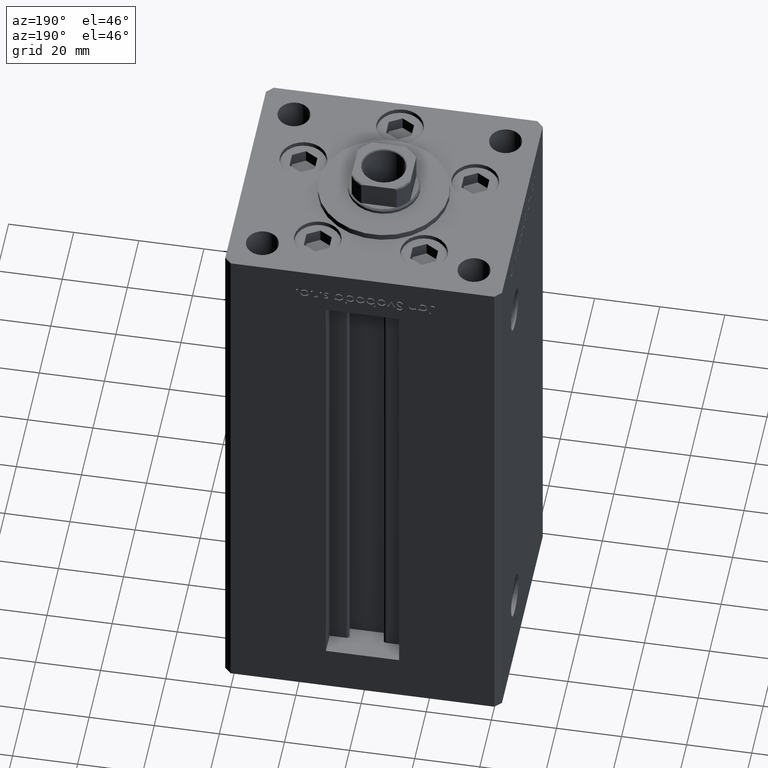
[diagram: clean part render]
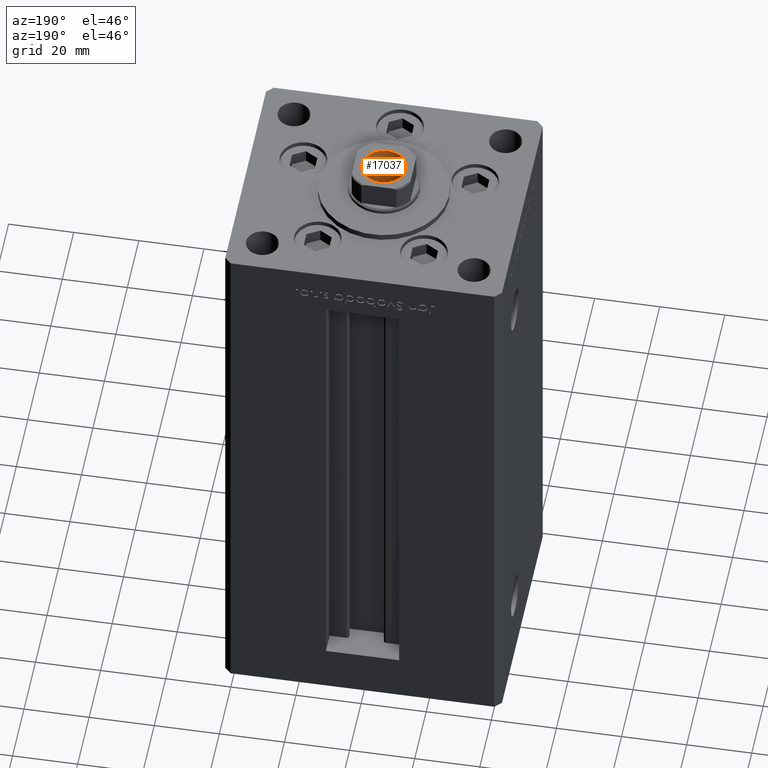
[diagram: same view with one face highlighted and labeled with its STEP entity id]
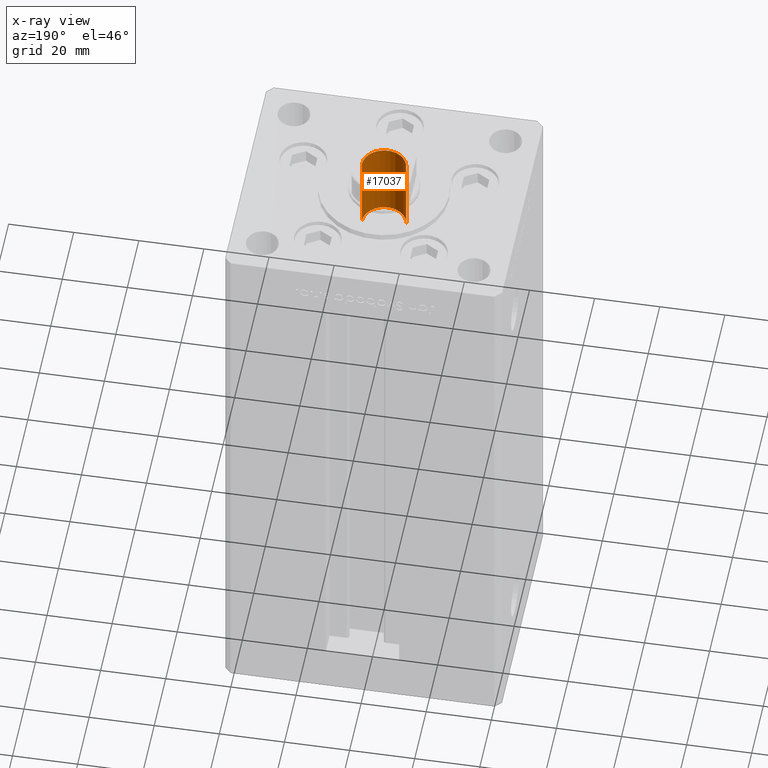
[diagram: x-ray of the same camera — body ghosted, the highlighted face saturated]
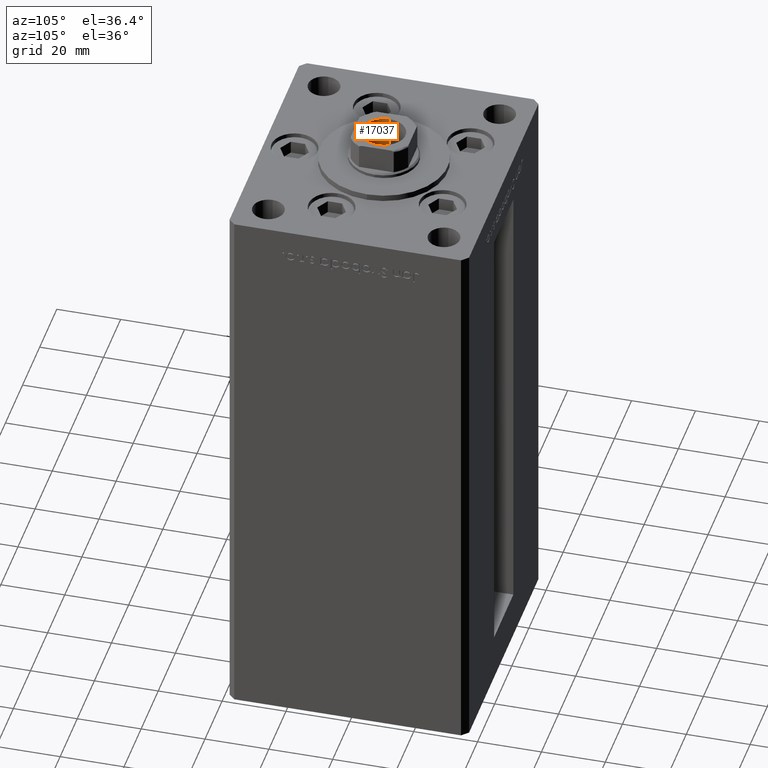
[diagram: same view with one face highlighted and labeled with its STEP entity id]
A machine part, auxiliary view. The second image highlights one B-rep face of the part: STEP entity #17037.
The next image is the same camera in x-ray: the body ghosted, the highlighted face saturated — about 0% of this face is hidden behind the body in this view.
A second angle (auxiliary view) of the same face is appended — the face is thin or edge-on in the first view.
In plain terms, the highlighted cylindrical surface (edge-blend (fillet) strip) has radius 6.75 mm, axis along (0, 0, 1).
Its self-contained STEP definition (entity closure, byte-faithful):
#785 = VERTEX_POINT ( 'NONE', #2245 ) ;
#895 = EDGE_CURVE ( 'NONE', #41517, #14320, #7751, .T. ) ;
#1527 = CARTESIAN_POINT ( 'NONE',  ( 0.000000000000000000, 0.000000000000000000, 155.7500000000000000 ) ) ;
#1783 = DIRECTION ( 'NONE',  ( 1.000000000000000000, 0.000000000000000000, 0.000000000000000000 ) ) ;
#2245 = CARTESIAN_POINT ( 'NONE',  ( 6.749999999999995559, 0.000000000000000000, 155.4499999999999886 ) ) ;
#2663 = VECTOR ( 'NONE', #46357, 1000.000000000000000 ) ;
#4215 = ORIENTED_EDGE ( 'NONE', *, *, #17038, .F. ) ;
#6004 = AXIS2_PLACEMENT_3D ( 'NONE', #1527, #13644, #1783 ) ;
#7751 = LINE ( 'NONE', #52077, #20837 ) ;
#8006 = DIRECTION ( 'NONE',  ( -0.000000000000000000, -0.000000000000000000, 1.000000000000000000 ) ) ;
#9704 = EDGE_CURVE ( 'NONE', #14320, #785, #28710, .T. ) ;
#9716 = CARTESIAN_POINT ( 'NONE',  ( -6.749999999999993783, 8.266365894244626445E-16, 130.7500000000000000 ) ) ;
#11743 = CIRCLE ( 'NONE', #26054, 6.749999999999993783 ) ;
#13644 = DIRECTION ( 'NONE',  ( -0.000000000000000000, -0.000000000000000000, 1.000000000000000000 ) ) ;
#13924 = VERTEX_POINT ( 'NONE', #31333 ) ;
#14320 = VERTEX_POINT ( 'NONE', #40207 ) ;
#15895 = CARTESIAN_POINT ( 'NONE',  ( 0.000000000000000000, 0.000000000000000000, 155.4499999999999886 ) ) ;
#17037 = ADVANCED_FACE ( 'NONE', ( #21814 ), #34750, .F. ) ;
#17038 = EDGE_CURVE ( 'NONE', #13924, #785, #45843, .T. ) ;
#20837 = VECTOR ( 'NONE', #8006, 1000.000000000000000 ) ;
#21814 = FACE_OUTER_BOUND ( 'NONE', #26944, .T. ) ;
#23001 = DIRECTION ( 'NONE',  ( 1.000000000000000000, 0.000000000000000000, 0.000000000000000000 ) ) ;
#26054 = AXIS2_PLACEMENT_3D ( 'NONE', #30405, #30931, #23001 ) ;
#26944 = EDGE_LOOP ( 'NONE', ( #29461, #40129, #38275, #4215 ) ) ;
#28710 = CIRCLE ( 'NONE', #43038, 6.749999999999995559 ) ;
#29226 = EDGE_CURVE ( 'NONE', #41517, #13924, #11743, .T. ) ;
#29461 = ORIENTED_EDGE ( 'NONE', *, *, #29226, .F. ) ;
#30405 = CARTESIAN_POINT ( 'NONE',  ( 0.000000000000000000, 0.000000000000000000, 130.7500000000000000 ) ) ;
#30931 = DIRECTION ( 'NONE',  ( -0.000000000000000000, -0.000000000000000000, 1.000000000000000000 ) ) ;
#31333 = CARTESIAN_POINT ( 'NONE',  ( 6.749999999999993783, 0.000000000000000000, 130.7500000000000000 ) ) ;
#31750 = DIRECTION ( 'NONE',  ( 0.000000000000000000, 0.000000000000000000, 1.000000000000000000 ) ) ;
#34750 = CYLINDRICAL_SURFACE ( 'NONE', #6004, 6.749999999999995559 ) ;
#38275 = ORIENTED_EDGE ( 'NONE', *, *, #9704, .T. ) ;
#38447 = CARTESIAN_POINT ( 'NONE',  ( 6.749999999999995559, 0.000000000000000000, 155.7500000000000000 ) ) ;
#40129 = ORIENTED_EDGE ( 'NONE', *, *, #895, .T. ) ;
#40207 = CARTESIAN_POINT ( 'NONE',  ( -6.749999999999995559, 8.266365894244628417E-16, 155.4499999999999886 ) ) ;
#41517 = VERTEX_POINT ( 'NONE', #9716 ) ;
#43038 = AXIS2_PLACEMENT_3D ( 'NONE', #15895, #31750, #44633 ) ;
#44633 = DIRECTION ( 'NONE',  ( 1.000000000000000000, 0.000000000000000000, 0.000000000000000000 ) ) ;
#45843 = LINE ( 'NONE', #38447, #2663 ) ;
#46357 = DIRECTION ( 'NONE',  ( -0.000000000000000000, -0.000000000000000000, 1.000000000000000000 ) ) ;
#52077 = CARTESIAN_POINT ( 'NONE',  ( -6.749999999999995559, 8.266365894244628417E-16, 155.7500000000000000 ) ) ;